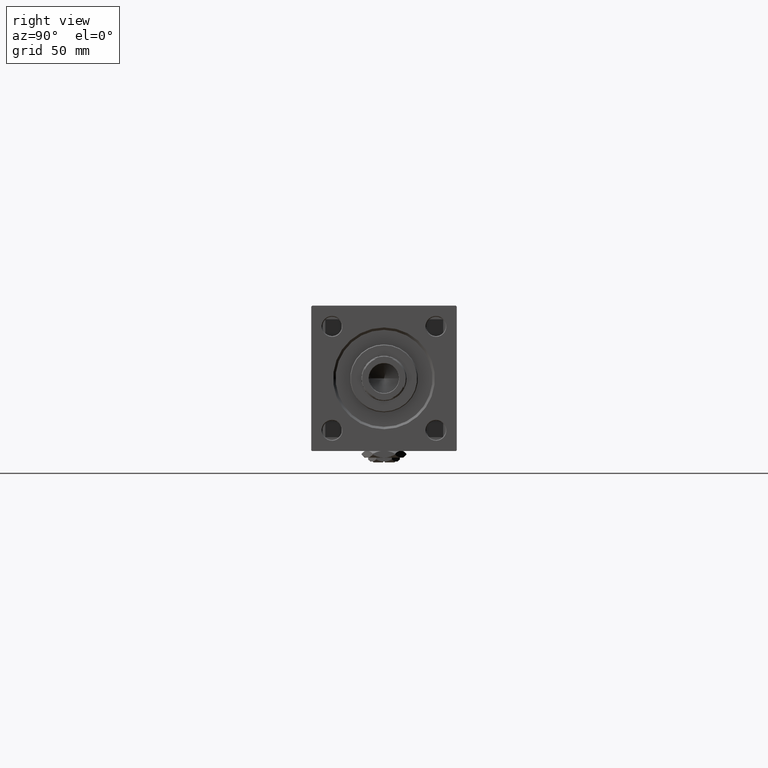
[diagram: clean part render]
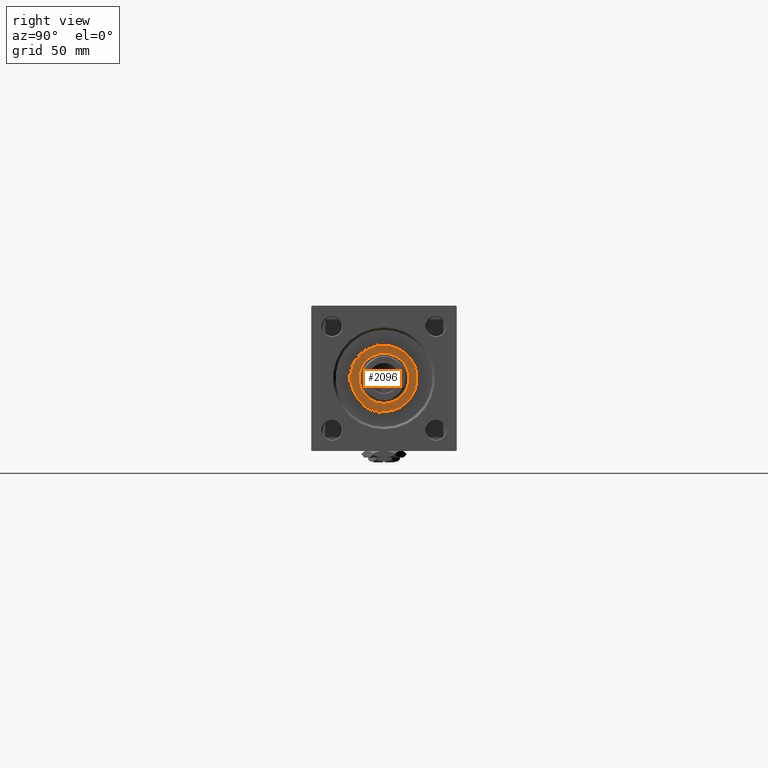
[diagram: same view with one face highlighted and labeled with its STEP entity id]
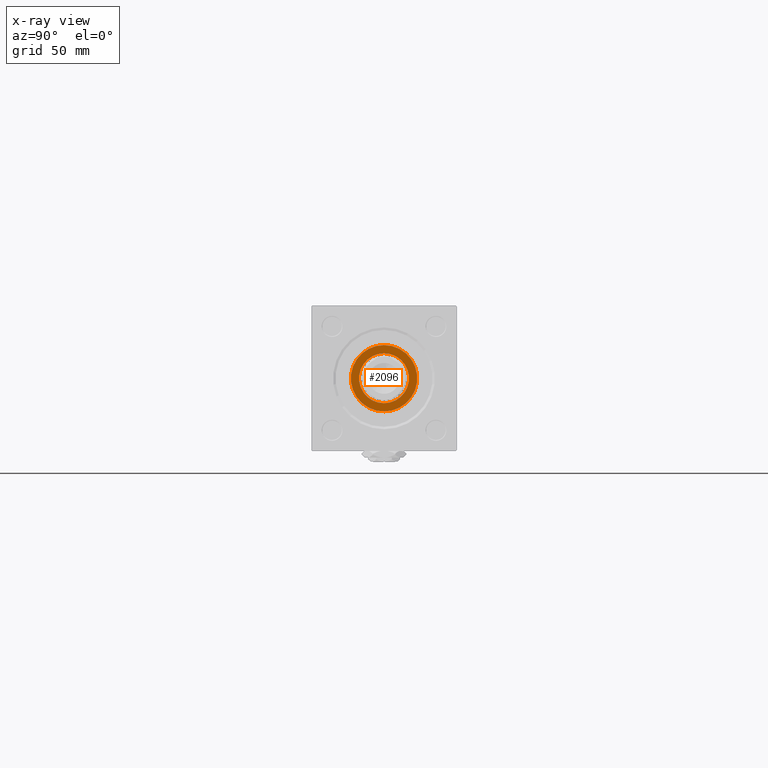
[diagram: x-ray of the same camera — body ghosted, the highlighted face saturated]
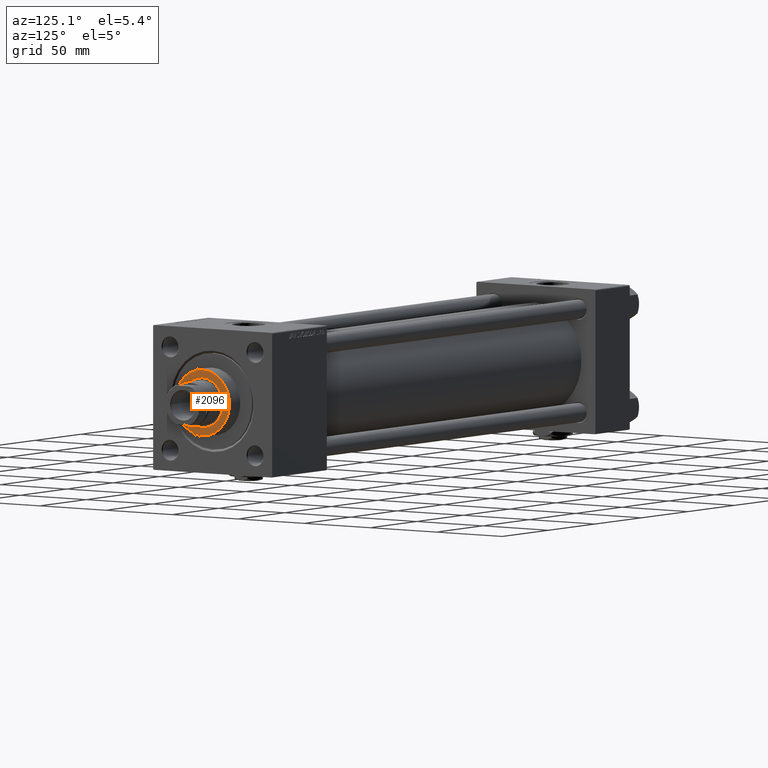
[diagram: same view with one face highlighted and labeled with its STEP entity id]
A machine part, right view. The second image highlights one B-rep face of the part: STEP entity #2096.
The next image is the same camera in x-ray: the body ghosted, the highlighted face saturated — about 0% of this face is hidden behind the body in this view.
A second angle (auxiliary view) of the same face is appended — the face is thin or edge-on in the first view.
In plain terms, the highlighted planar face has unit normal (1, 0, 0).
Its self-contained STEP definition (entity closure, byte-faithful):
#1241 = ORIENTED_EDGE ( 'NONE', *, *, #14672, .T. ) ;
#1449 = CIRCLE ( 'NONE', #30134, 15.50000000000000000 ) ;
#1618 = DIRECTION ( 'NONE',  ( 1.000000000000000000, 0.000000000000000000, -0.000000000000000000 ) ) ;
#2005 = CARTESIAN_POINT ( 'NONE',  ( 0.000000000000000000, 0.000000000000000000, 39.69999999999999574 ) ) ;
#2096 = ADVANCED_FACE ( 'NONE', ( #29384, #5841 ), #45525, .T. ) ;
#2626 = ORIENTED_EDGE ( 'NONE', *, *, #24676, .F. ) ;
#4079 = DIRECTION ( 'NONE',  ( 0.000000000000000000, 0.000000000000000000, 1.000000000000000000 ) ) ;
#4732 = AXIS2_PLACEMENT_3D ( 'NONE', #33768, #26093, #50159 ) ;
#5841 = FACE_OUTER_BOUND ( 'NONE', #6383, .T. ) ;
#5962 = DIRECTION ( 'NONE',  ( 0.000000000000000000, 0.000000000000000000, 1.000000000000000000 ) ) ;
#6383 = EDGE_LOOP ( 'NONE', ( #37977, #1241 ) ) ;
#6450 = DIRECTION ( 'NONE',  ( 1.000000000000000000, 0.000000000000000000, 0.000000000000000000 ) ) ;
#7475 = DIRECTION ( 'NONE',  ( 0.000000000000000000, 0.000000000000000000, 1.000000000000000000 ) ) ;
#12268 = DIRECTION ( 'NONE',  ( 1.000000000000000000, 0.000000000000000000, 0.000000000000000000 ) ) ;
#13962 = EDGE_LOOP ( 'NONE', ( #2626, #24553 ) ) ;
#14672 = EDGE_CURVE ( 'NONE', #17364, #18349, #37506, .T. ) ;
#14691 = AXIS2_PLACEMENT_3D ( 'NONE', #2005, #5962, #18119 ) ;
#15148 = CARTESIAN_POINT ( 'NONE',  ( 0.000000000000000000, 0.000000000000000000, 39.69999999999999574 ) ) ;
#16537 = AXIS2_PLACEMENT_3D ( 'NONE', #48769, #4079, #12268 ) ;
#17364 = VERTEX_POINT ( 'NONE', #39184 ) ;
#18119 = DIRECTION ( 'NONE',  ( 1.000000000000000000, 0.000000000000000000, 0.000000000000000000 ) ) ;
#18349 = VERTEX_POINT ( 'NONE', #37435 ) ;
#20301 = CARTESIAN_POINT ( 'NONE',  ( 15.50000000000000000, 0.000000000000000000, 39.69999999999999574 ) ) ;
#21970 = DIRECTION ( 'NONE',  ( 0.000000000000000000, 0.000000000000000000, 1.000000000000000000 ) ) ;
#23264 = EDGE_CURVE ( 'NONE', #39606, #26616, #39337, .T. ) ;
#23538 = AXIS2_PLACEMENT_3D ( 'NONE', #41556, #21970, #1618 ) ;
#24553 = ORIENTED_EDGE ( 'NONE', *, *, #23264, .F. ) ;
#24676 = EDGE_CURVE ( 'NONE', #26616, #39606, #1449, .T. ) ;
#26093 = DIRECTION ( 'NONE',  ( 0.000000000000000000, 0.000000000000000000, 1.000000000000000000 ) ) ;
#26616 = VERTEX_POINT ( 'NONE', #20301 ) ;
#29384 = FACE_BOUND ( 'NONE', #13962, .T. ) ;
#30134 = AXIS2_PLACEMENT_3D ( 'NONE', #15148, #7475, #6450 ) ;
#32193 = CARTESIAN_POINT ( 'NONE',  ( -15.50000000000000000, 1.898202538678397557E-15, 39.69999999999999574 ) ) ;
#33768 = CARTESIAN_POINT ( 'NONE',  ( 0.000000000000000000, 0.000000000000000000, 39.69999999999999574 ) ) ;
#37435 = CARTESIAN_POINT ( 'NONE',  ( -20.50000000000000355, 0.000000000000000000, 39.69999999999999574 ) ) ;
#37506 = CIRCLE ( 'NONE', #14691, 20.50000000000000355 ) ;
#37977 = ORIENTED_EDGE ( 'NONE', *, *, #39077, .T. ) ;
#39077 = EDGE_CURVE ( 'NONE', #18349, #17364, #48682, .T. ) ;
#39184 = CARTESIAN_POINT ( 'NONE',  ( 20.50000000000000355, 2.541142108230758269E-15, 39.69999999999999574 ) ) ;
#39337 = CIRCLE ( 'NONE', #16537, 15.50000000000000000 ) ;
#39606 = VERTEX_POINT ( 'NONE', #32193 ) ;
#41556 = CARTESIAN_POINT ( 'NONE',  ( 0.000000000000000000, 0.000000000000000000, 39.69999999999999574 ) ) ;
#45525 = PLANE ( 'NONE',  #23538 ) ;
#48682 = CIRCLE ( 'NONE', #4732, 20.50000000000000355 ) ;
#48769 = CARTESIAN_POINT ( 'NONE',  ( 0.000000000000000000, 0.000000000000000000, 39.69999999999999574 ) ) ;
#50159 = DIRECTION ( 'NONE',  ( 1.000000000000000000, 0.000000000000000000, 0.000000000000000000 ) ) ;